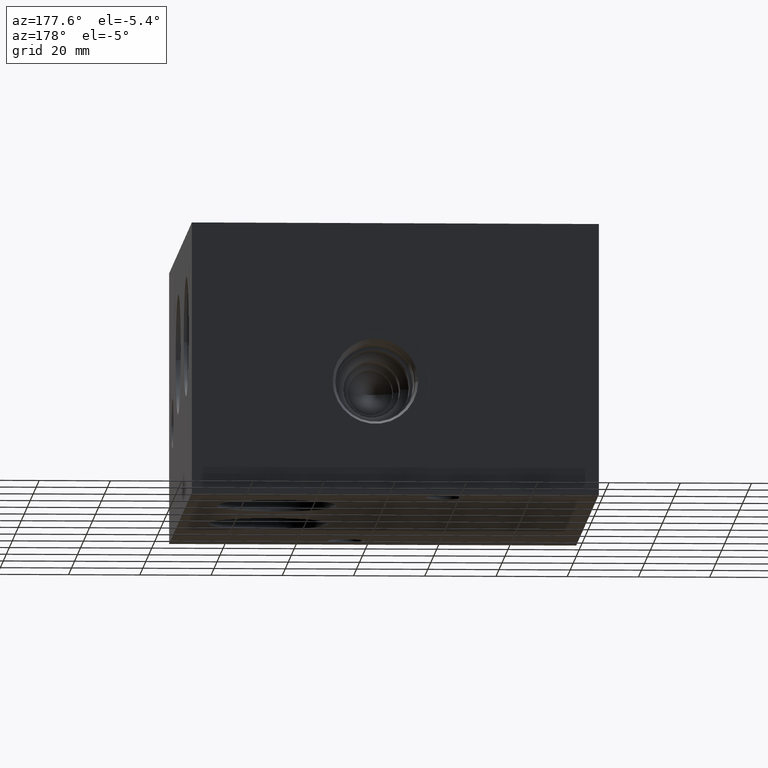
[diagram: clean part render]
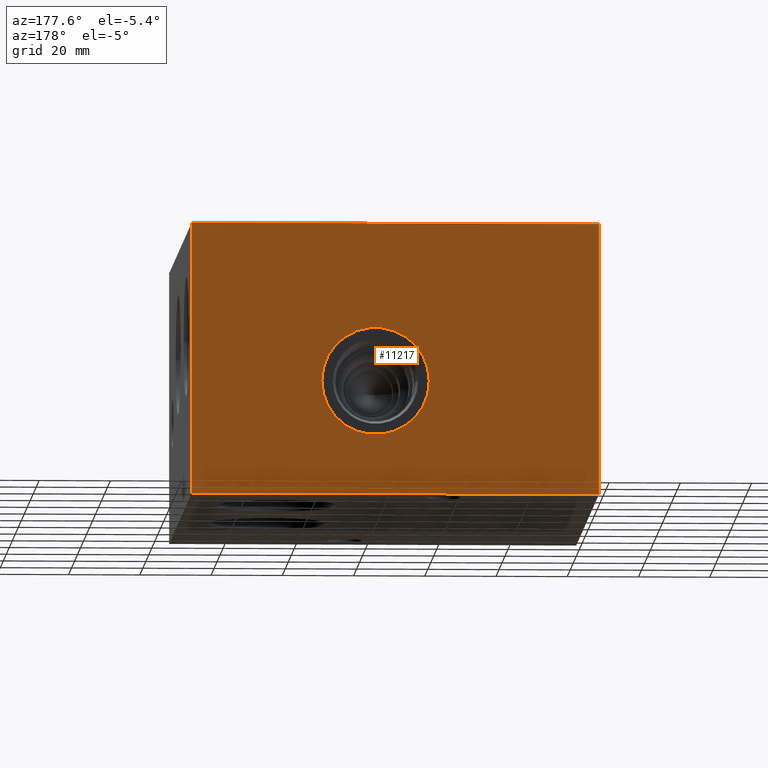
[diagram: same view with one face highlighted and labeled with its STEP entity id]
A machine part, auxiliary view. The second image highlights one B-rep face of the part: STEP entity #11217.
In plain terms, the highlighted planar face has unit normal (0, 1, 0).
Its self-contained STEP definition (entity closure, byte-faithful):
#145=CIRCLE('',#11649,15.08);
#146=CIRCLE('',#11650,15.08);
#328=FACE_BOUND('',#1902,.T.);
#686=PLANE('',#11818);
#1257=FACE_OUTER_BOUND('',#1901,.T.);
#1901=EDGE_LOOP('',(#9981,#9982,#9983,#9984));
#1902=EDGE_LOOP('',(#9985,#9986));
#1957=LINE('',#14276,#3025);
#2042=LINE('',#14597,#3110);
#2847=LINE('',#18563,#3915);
#2990=LINE('',#19207,#4058);
#3025=VECTOR('',#11879,10.);
#3110=VECTOR('',#12034,10.);
#3915=VECTOR('',#13363,10.);
#4058=VECTOR('',#14058,10.);
#4397=VERTEX_POINT('',#14273);
#4398=VERTEX_POINT('',#14275);
#4471=VERTEX_POINT('',#14596);
#5194=VERTEX_POINT('',#18561);
#5295=VERTEX_POINT('',#18863);
#5296=VERTEX_POINT('',#18864);
#5470=EDGE_CURVE('',#4398,#4397,#1957,.T.);
#5577=EDGE_CURVE('',#4398,#4471,#2042,.T.);
#6660=EDGE_CURVE('',#4397,#5194,#2847,.T.);
#6800=EDGE_CURVE('',#5295,#5296,#145,.T.);
#6801=EDGE_CURVE('',#5296,#5295,#146,.T.);
#6959=EDGE_CURVE('',#4471,#5194,#2990,.T.);
#9981=ORIENTED_EDGE('',*,*,#5470,.T.);
#9982=ORIENTED_EDGE('',*,*,#6660,.T.);
#9983=ORIENTED_EDGE('',*,*,#6959,.F.);
#9984=ORIENTED_EDGE('',*,*,#5577,.F.);
#9985=ORIENTED_EDGE('',*,*,#6800,.T.);
#9986=ORIENTED_EDGE('',*,*,#6801,.T.);
#11217=ADVANCED_FACE('',(#1257,#328),#686,.T.);
#11649=AXIS2_PLACEMENT_3D('',#18865,#13669,#13670);
#11650=AXIS2_PLACEMENT_3D('',#18866,#13671,#13672);
#11818=AXIS2_PLACEMENT_3D('',#19206,#14056,#14057);
#11879=DIRECTION('',(-1.,0.,0.));
#12034=DIRECTION('',(0.,0.,1.));
#13363=DIRECTION('',(0.,0.,1.));
#13669=DIRECTION('center_axis',(0.,-1.,0.));
#13670=DIRECTION('ref_axis',(1.,0.,0.));
#13671=DIRECTION('center_axis',(0.,-1.,0.));
#13672=DIRECTION('ref_axis',(1.,0.,0.));
#14056=DIRECTION('center_axis',(0.,1.,0.));
#14057=DIRECTION('ref_axis',(-1.,0.,0.));
#14058=DIRECTION('',(-1.,0.,0.));
#14273=CARTESIAN_POINT('',(0.,152.4,0.));
#14275=CARTESIAN_POINT('',(114.3,152.4,0.));
#14276=CARTESIAN_POINT('',(114.3,152.4,0.));
#14596=CARTESIAN_POINT('',(114.3,152.4,76.2));
#14597=CARTESIAN_POINT('',(114.3,152.4,0.));
#18561=CARTESIAN_POINT('',(0.,152.4,76.2));
#18563=CARTESIAN_POINT('',(0.,152.4,0.));
#18863=CARTESIAN_POINT('',(77.7926,152.4,31.75));
#18864=CARTESIAN_POINT('',(47.6326,152.4,31.75));
#18865=CARTESIAN_POINT('Origin',(62.7126,152.4,31.75));
#18866=CARTESIAN_POINT('Origin',(62.7126,152.4,31.75));
#19206=CARTESIAN_POINT('Origin',(114.3,152.4,0.));
#19207=CARTESIAN_POINT('',(114.3,152.4,76.2));